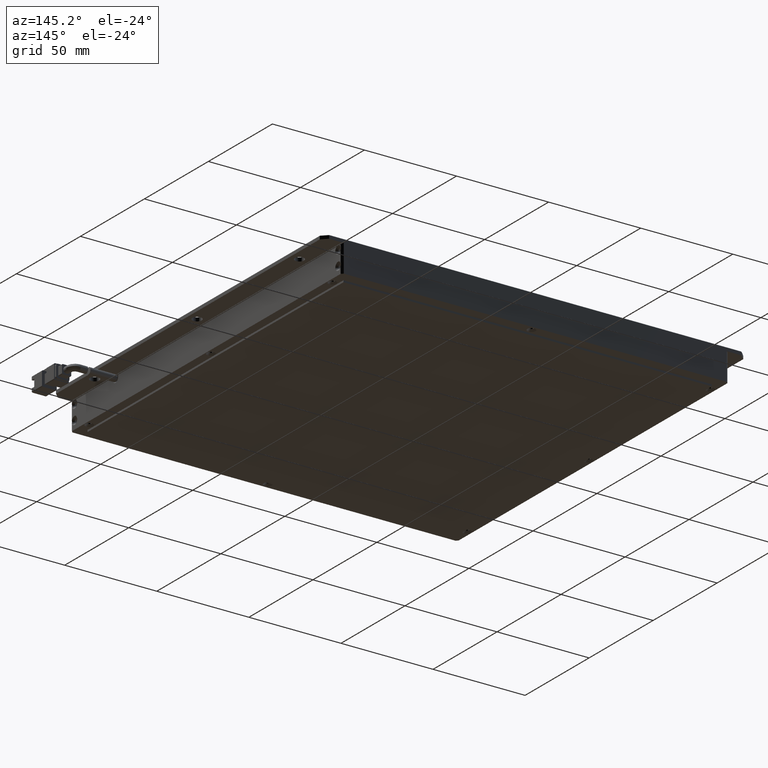
[diagram: clean part render]
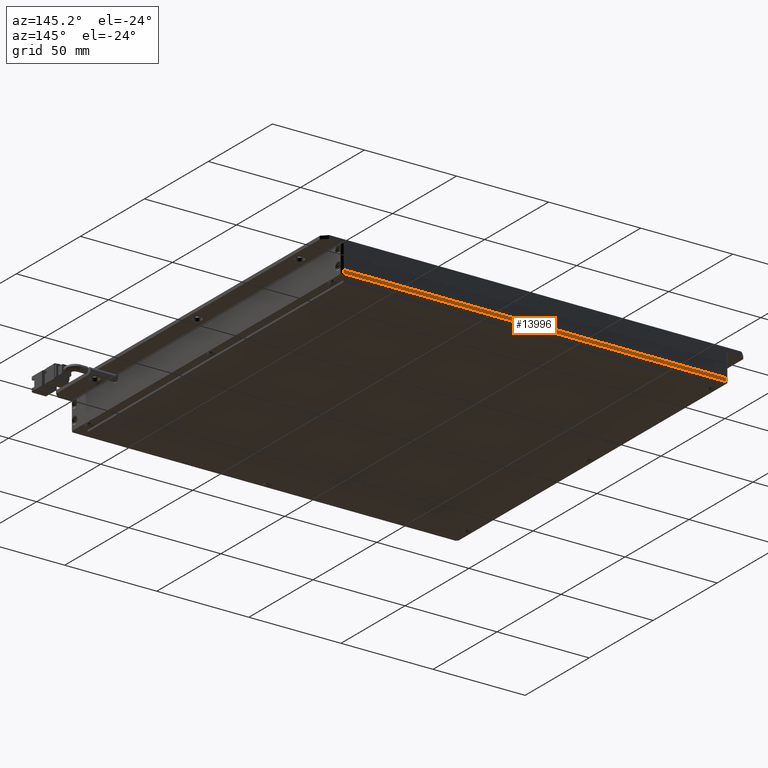
[diagram: same view with one face highlighted and labeled with its STEP entity id]
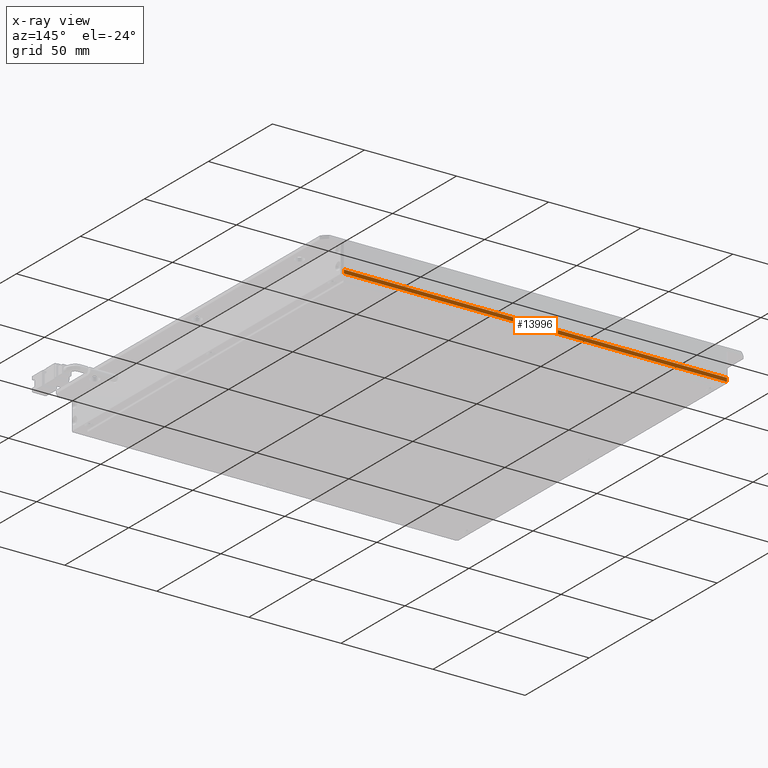
[diagram: x-ray of the same camera — body ghosted, the highlighted face saturated]
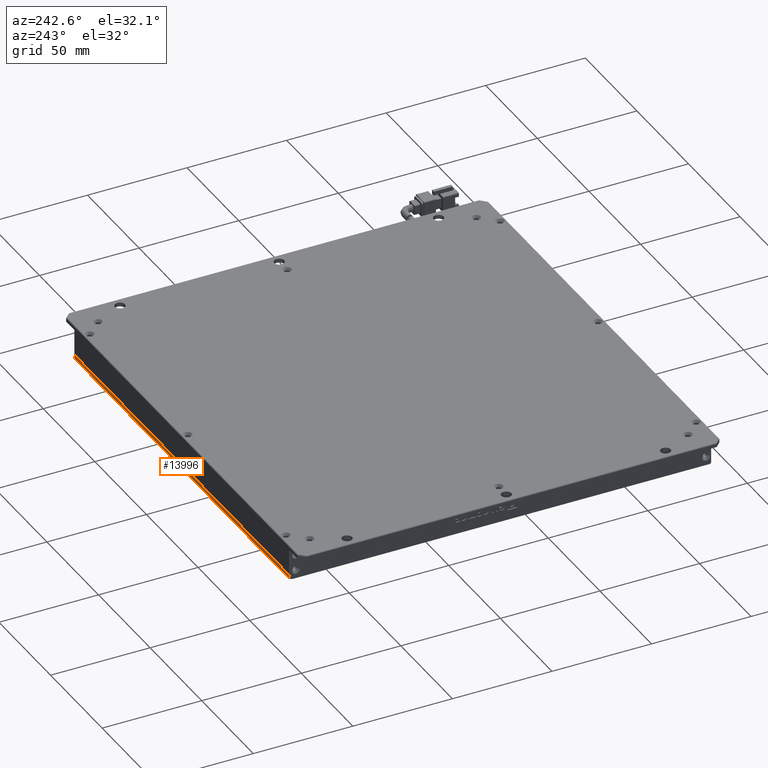
[diagram: same view with one face highlighted and labeled with its STEP entity id]
A machine part, auxiliary view. The second image highlights one B-rep face of the part: STEP entity #13996.
The next image is the same camera in x-ray: the body ghosted, the highlighted face saturated — about 0% of this face is hidden behind the body in this view.
A second angle (auxiliary view) of the same face is appended — the face is thin or edge-on in the first view.
In plain terms, the highlighted planar face has unit normal (0, -1, 0).
Its self-contained STEP definition (entity closure, byte-faithful):
#30 = VERTEX_POINT ( 'NONE', #9973 ) ;
#411 = DIRECTION ( 'NONE',  ( -0.0000000000000000000, -0.0000000000000000000, 1.000000000000000000 ) ) ;
#1576 = ORIENTED_EDGE ( 'NONE', *, *, #16078, .F. ) ;
#1670 = CARTESIAN_POINT ( 'NONE',  ( -86.33424941752385000, 72.62124601721919200, -15.00000000002364500 ) ) ;
#3123 = EDGE_CURVE ( 'NONE', #8716, #15661, #14226, .T. ) ;
#5240 = VERTEX_POINT ( 'NONE', #16181 ) ;
#6845 = PLANE ( 'NONE',  #14663 ) ;
#6876 = CARTESIAN_POINT ( 'NONE',  ( 123.6657505824761400, 72.62124601721919200, -13.00000000002364500 ) ) ;
#7016 = DIRECTION ( 'NONE',  ( 1.000000000000000000, -0.0000000000000000000, -0.0000000000000000000 ) ) ;
#7165 = ORIENTED_EDGE ( 'NONE', *, *, #12546, .F. ) ;
#7389 = FACE_OUTER_BOUND ( 'NONE', #10212, .T. ) ;
#7460 = DIRECTION ( 'NONE',  ( 0.0000000000000000000, 0.0000000000000000000, -1.000000000000000000 ) ) ;
#8299 = VECTOR ( 'NONE', #15617, 1000.000000000000000 ) ;
#8716 = VERTEX_POINT ( 'NONE', #15688 ) ;
#9973 = CARTESIAN_POINT ( 'NONE',  ( 122.6657505824761200, 72.62124601721919200, -13.00000000002364500 ) ) ;
#10212 = EDGE_LOOP ( 'NONE', ( #1576, #17833, #7165, #11791 ) ) ;
#10297 = CARTESIAN_POINT ( 'NONE',  ( -86.33424941752385000, 72.62124601721919200, -15.00000000002364500 ) ) ;
#11041 = CARTESIAN_POINT ( 'NONE',  ( -85.33424941752389300, 72.62124601721919200, -15.00000000002364500 ) ) ;
#11774 = VECTOR ( 'NONE', #7016, 1000.000000000000000 ) ;
#11791 = ORIENTED_EDGE ( 'NONE', *, *, #18919, .T. ) ;
#12546 = EDGE_CURVE ( 'NONE', #5240, #8716, #17051, .T. ) ;
#13996 = ADVANCED_FACE ( 'NONE', ( #7389 ), #6845, .F. ) ;
#14226 = LINE ( 'NONE', #1670, #11774 ) ;
#14663 = AXIS2_PLACEMENT_3D ( 'NONE', #10297, #15208, #18724 ) ;
#14963 = CARTESIAN_POINT ( 'NONE',  ( 122.6657505824761400, 72.62124601721917800, -15.00000000002364500 ) ) ;
#15208 = DIRECTION ( 'NONE',  ( 0.0000000000000000000, -1.000000000000000000, 0.0000000000000000000 ) ) ;
#15617 = DIRECTION ( 'NONE',  ( 1.000000000000000000, 0.0000000000000000000, 0.0000000000000000000 ) ) ;
#15661 = VERTEX_POINT ( 'NONE', #14963 ) ;
#15688 = CARTESIAN_POINT ( 'NONE',  ( -85.33424941752389300, 72.62124601721917800, -15.00000000002364500 ) ) ;
#16078 = EDGE_CURVE ( 'NONE', #15661, #30, #19301, .T. ) ;
#16181 = CARTESIAN_POINT ( 'NONE',  ( -85.33424941752390700, 72.62124601721917800, -13.00000000002364500 ) ) ;
#16316 = CARTESIAN_POINT ( 'NONE',  ( 122.6657505824761100, 72.62124601721919200, -15.00000000002364500 ) ) ;
#17051 = LINE ( 'NONE', #11041, #18701 ) ;
#17833 = ORIENTED_EDGE ( 'NONE', *, *, #3123, .F. ) ;
#17943 = VECTOR ( 'NONE', #411, 1000.000000000000000 ) ;
#18701 = VECTOR ( 'NONE', #7460, 1000.000000000000000 ) ;
#18724 = DIRECTION ( 'NONE',  ( -1.000000000000000000, 0.0000000000000000000, 0.0000000000000000000 ) ) ;
#18919 = EDGE_CURVE ( 'NONE', #5240, #30, #19953, .T. ) ;
#19301 = LINE ( 'NONE', #16316, #17943 ) ;
#19953 = LINE ( 'NONE', #6876, #8299 ) ;